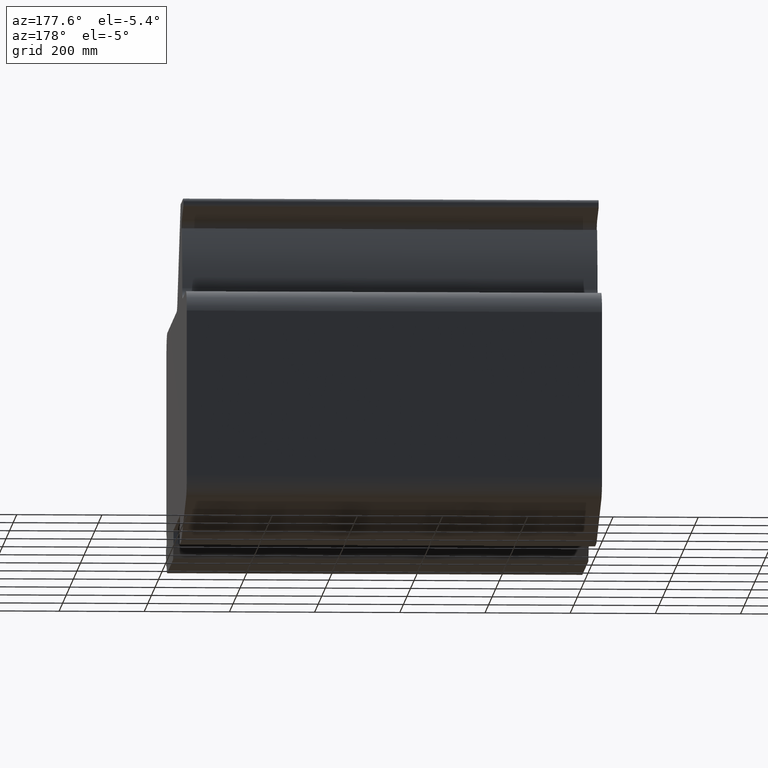
[diagram: clean part render]
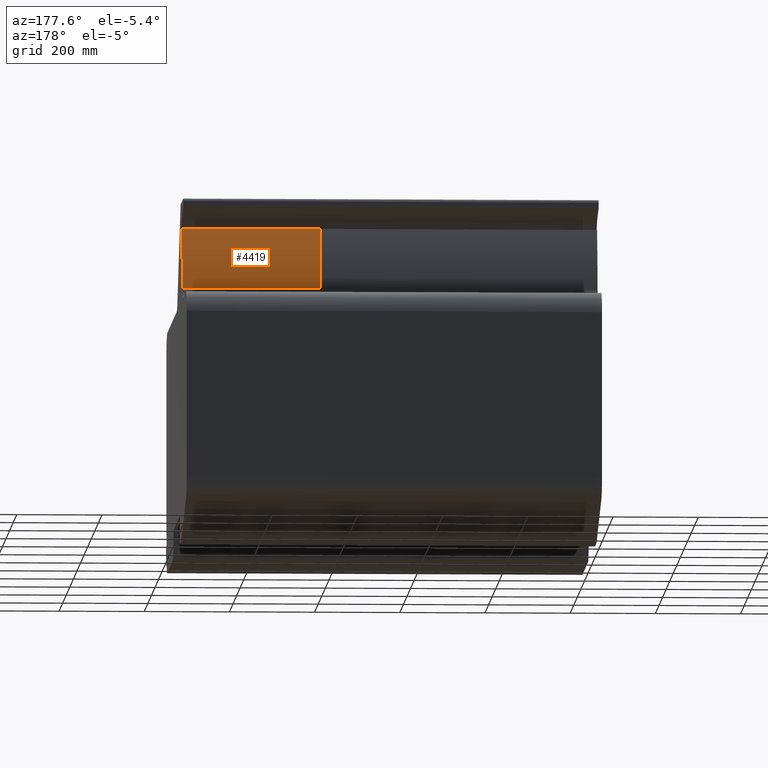
[diagram: same view with one face highlighted and labeled with its STEP entity id]
A machine part, auxiliary view. The second image highlights one B-rep face of the part: STEP entity #4419.
In plain terms, the highlighted cylindrical surface (partial cylindrical patch) has radius 518.41 mm, axis along (1, 0, 0).
Its self-contained STEP definition (entity closure, byte-faithful):
#4361=CARTESIAN_POINT('',(975.00000000000045,106.10000000001719,667.50000000000659));
#4362=VERTEX_POINT('',#4361);
#4369=CARTESIAN_POINT('',(650.00000000000023,106.10000000001719,667.50000000000659));
#4370=VERTEX_POINT('',#4369);
#4371=CARTESIAN_POINT('',(650.00000000000023,106.10000000001719,667.50000000000659));
#4372=DIRECTION('',(1.0,0.0,0.0));
#4373=VECTOR('',#4372,325.00000000000011);
#4374=LINE('',#4371,#4373);
#4375=EDGE_CURVE('',#4370,#4362,#4374,.T.);
#4387=CARTESIAN_POINT('',(650.00000000000023,-383.6437371727925,497.4999999998937));
#4388=DIRECTION('',(1.0,0.0,0.0));
#4389=DIRECTION('',(0.0,0.981493310834058,0.191496425000574));
#4390=AXIS2_PLACEMENT_3D('',#4387,#4388,#4389);
#4391=CYLINDRICAL_SURFACE('',#4390,518.41000000002748);
#4392=CARTESIAN_POINT('',(975.00000000000045,134.08516805846943,524.06517999302446));
#4393=VERTEX_POINT('',#4392);
#4394=CARTESIAN_POINT('',(975.00000000000045,-383.6437371727925,497.4999999998937));
#4395=DIRECTION('',(-1.0,0.0,0.0));
#4396=DIRECTION('',(0.0,0.981493310834058,0.191496425000574));
#4397=AXIS2_PLACEMENT_3D('',#4394,#4395,#4396);
#4398=CIRCLE('',#4397,518.41000000002748);
#4399=EDGE_CURVE('',#4362,#4393,#4398,.T.);
#4400=ORIENTED_EDGE('',*,*,#4399,.T.);
#4401=CARTESIAN_POINT('',(650.00000000000023,134.08516805846943,524.06517999302446));
#4402=VERTEX_POINT('',#4401);
#4403=CARTESIAN_POINT('',(650.00000000000023,134.08516805846943,524.06517999302446));
#4404=DIRECTION('',(1.0,0.0,0.0));
#4405=VECTOR('',#4404,325.00000000000011);
#4406=LINE('',#4403,#4405);
#4407=EDGE_CURVE('',#4402,#4393,#4406,.T.);
#4408=ORIENTED_EDGE('',*,*,#4407,.F.);
#4409=CARTESIAN_POINT('',(650.00000000000023,-383.6437371727925,497.4999999998937));
#4410=DIRECTION('',(-1.0,0.0,0.0));
#4411=DIRECTION('',(0.0,0.981493310834058,0.191496425000574));
#4412=AXIS2_PLACEMENT_3D('',#4409,#4410,#4411);
#4413=CIRCLE('',#4412,518.41000000002748);
#4414=EDGE_CURVE('',#4370,#4402,#4413,.T.);
#4415=ORIENTED_EDGE('',*,*,#4414,.F.);
#4416=ORIENTED_EDGE('',*,*,#4375,.T.);
#4417=EDGE_LOOP('',(#4400,#4408,#4415,#4416));
#4418=FACE_OUTER_BOUND('',#4417,.T.);
#4419=ADVANCED_FACE('',(#4418),#4391,.T.);